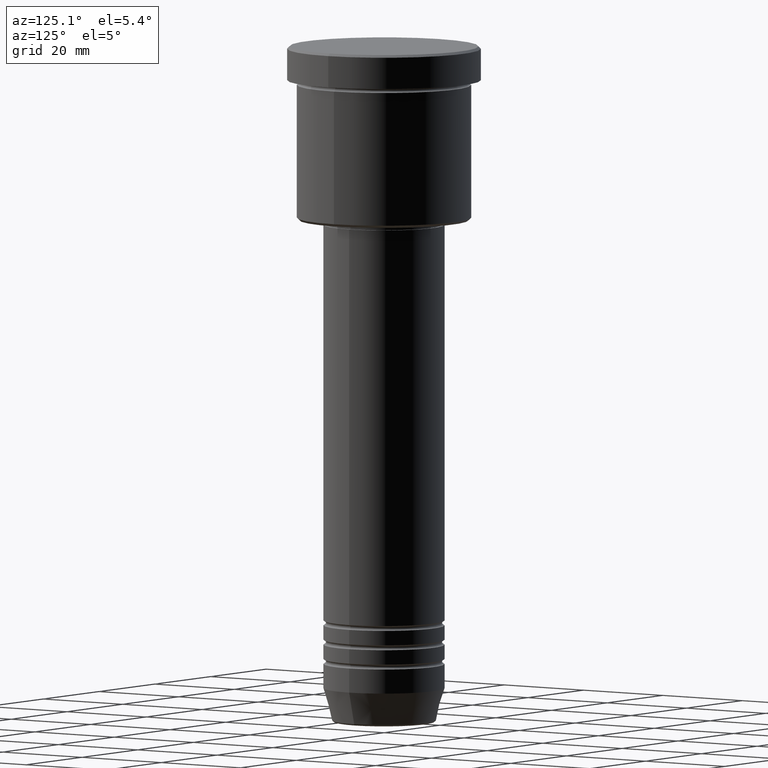
[diagram: clean part render]
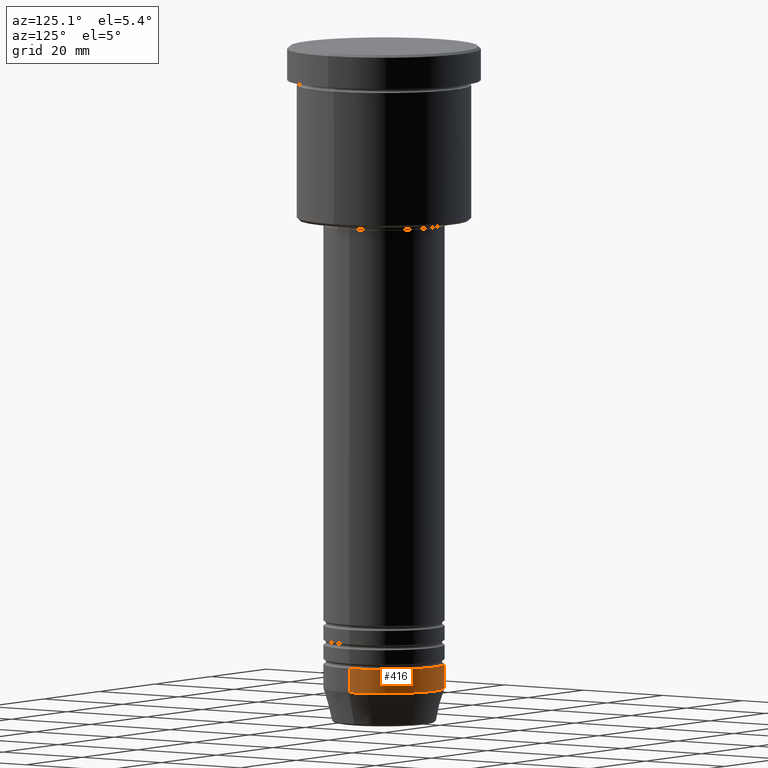
[diagram: same view with one face highlighted and labeled with its STEP entity id]
A machine part, auxiliary view. The second image highlights one B-rep face of the part: STEP entity #416.
In plain terms, the highlighted cylindrical surface (partial cylindrical patch) has radius 12.5 mm, axis along (-0, -0, 1).
Its self-contained STEP definition (entity closure, byte-faithful):
#21 = EDGE_CURVE ( 'NONE', #128, #315, #672, .T. ) ;
#55 = ORIENTED_EDGE ( 'NONE', *, *, #321, .T. ) ;
#69 = DIRECTION ( 'NONE',  ( 1.000000000000000000, 0.000000000000000000, 0.000000000000000000 ) ) ;
#128 = VERTEX_POINT ( 'NONE', #1129 ) ;
#151 = ORIENTED_EDGE ( 'NONE', *, *, #506, .F. ) ;
#160 = VECTOR ( 'NONE', #374, 1000.000000000000000 ) ;
#297 = CARTESIAN_POINT ( 'NONE',  ( 0.000000000000000000, 0.000000000000000000, -128.0000000000000000 ) ) ;
#315 = VERTEX_POINT ( 'NONE', #796 ) ;
#321 = EDGE_CURVE ( 'NONE', #399, #847, #1036, .T. ) ;
#337 = DIRECTION ( 'NONE',  ( -0.000000000000000000, -0.000000000000000000, 1.000000000000000000 ) ) ;
#359 = CARTESIAN_POINT ( 'NONE',  ( -12.50000000000000000, 1.530808498934191521E-15, 0.000000000000000000 ) ) ;
#360 = CARTESIAN_POINT ( 'NONE',  ( -12.50000000000000000, 1.530808498934191521E-15, -133.0000000000000000 ) ) ;
#374 = DIRECTION ( 'NONE',  ( -0.000000000000000000, -0.000000000000000000, 1.000000000000000000 ) ) ;
#391 = CYLINDRICAL_SURFACE ( 'NONE', #1082, 12.50000000000000000 ) ;
#396 = EDGE_CURVE ( 'NONE', #847, #315, #887, .T. ) ;
#399 = VERTEX_POINT ( 'NONE', #979 ) ;
#416 = ADVANCED_FACE ( 'NONE', ( #1095 ), #391, .T. ) ;
#479 = AXIS2_PLACEMENT_3D ( 'NONE', #901, #882, #69 ) ;
#506 = EDGE_CURVE ( 'NONE', #399, #128, #1103, .T. ) ;
#560 = DIRECTION ( 'NONE',  ( -0.000000000000000000, -0.000000000000000000, 1.000000000000000000 ) ) ;
#626 = VECTOR ( 'NONE', #337, 1000.000000000000000 ) ;
#672 = CIRCLE ( 'NONE', #706, 12.50000000000000000 ) ;
#683 = EDGE_LOOP ( 'NONE', ( #55, #753, #707, #151 ) ) ;
#706 = AXIS2_PLACEMENT_3D ( 'NONE', #297, #835, #918 ) ;
#707 = ORIENTED_EDGE ( 'NONE', *, *, #21, .F. ) ;
#753 = ORIENTED_EDGE ( 'NONE', *, *, #396, .T. ) ;
#760 = DIRECTION ( 'NONE',  ( 1.000000000000000000, 0.000000000000000000, 0.000000000000000000 ) ) ;
#796 = CARTESIAN_POINT ( 'NONE',  ( -12.50000000000000000, 1.530808498934191521E-15, -128.0000000000000000 ) ) ;
#835 = DIRECTION ( 'NONE',  ( -0.000000000000000000, -0.000000000000000000, 1.000000000000000000 ) ) ;
#847 = VERTEX_POINT ( 'NONE', #360 ) ;
#850 = CARTESIAN_POINT ( 'NONE',  ( 0.000000000000000000, 0.000000000000000000, 0.000000000000000000 ) ) ;
#882 = DIRECTION ( 'NONE',  ( -0.000000000000000000, -0.000000000000000000, 1.000000000000000000 ) ) ;
#887 = LINE ( 'NONE', #359, #626 ) ;
#901 = CARTESIAN_POINT ( 'NONE',  ( 0.000000000000000000, 0.000000000000000000, -133.0000000000000000 ) ) ;
#918 = DIRECTION ( 'NONE',  ( 1.000000000000000000, 0.000000000000000000, 0.000000000000000000 ) ) ;
#979 = CARTESIAN_POINT ( 'NONE',  ( 12.50000000000000000, 0.000000000000000000, -133.0000000000000000 ) ) ;
#1036 = CIRCLE ( 'NONE', #479, 12.50000000000000000 ) ;
#1082 = AXIS2_PLACEMENT_3D ( 'NONE', #850, #560, #760 ) ;
#1084 = CARTESIAN_POINT ( 'NONE',  ( 12.50000000000000000, 0.000000000000000000, 0.000000000000000000 ) ) ;
#1095 = FACE_OUTER_BOUND ( 'NONE', #683, .T. ) ;
#1103 = LINE ( 'NONE', #1084, #160 ) ;
#1129 = CARTESIAN_POINT ( 'NONE',  ( 12.50000000000000000, 0.000000000000000000, -128.0000000000000000 ) ) ;